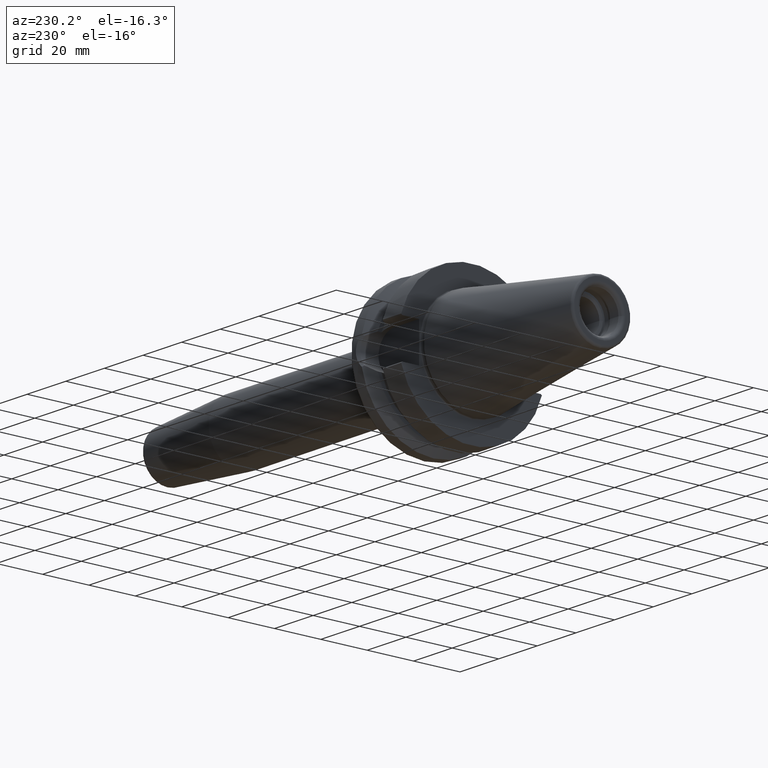
[diagram: clean part render]
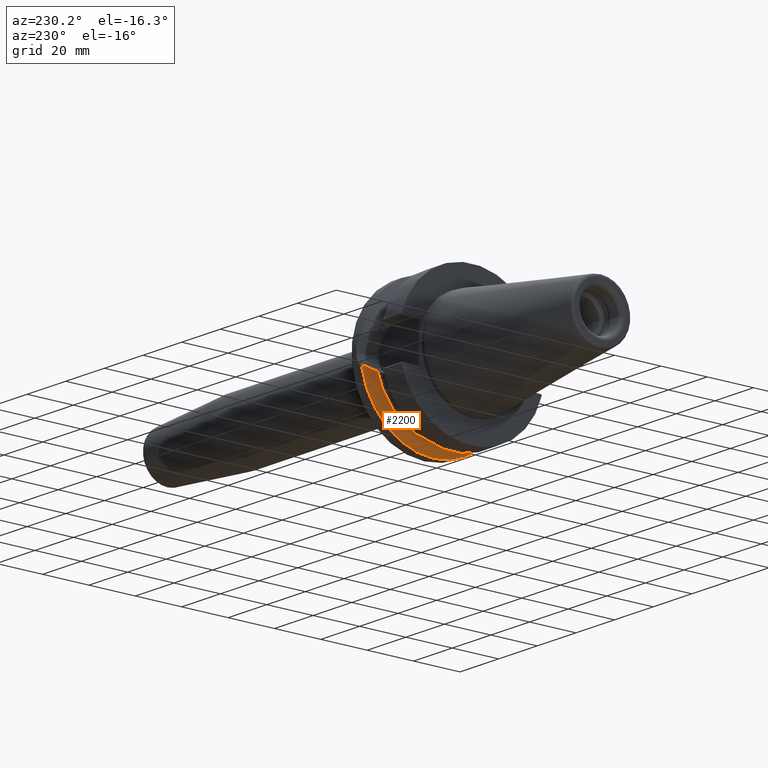
[diagram: same view with one face highlighted and labeled with its STEP entity id]
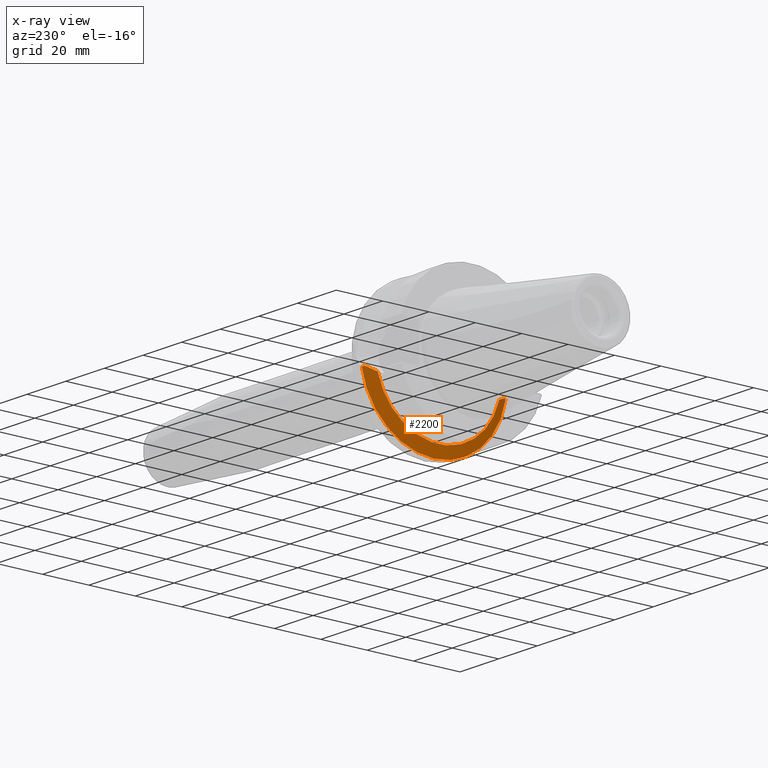
[diagram: x-ray of the same camera — body ghosted, the highlighted face saturated]
A machine part, auxiliary view. The second image highlights one B-rep face of the part: STEP entity #2200.
The next image is the same camera in x-ray: the body ghosted, the highlighted face saturated — about 5% of this face is hidden behind the body in this view.
In plain terms, the highlighted conical surface has half-angle 60 deg.
Its self-contained STEP definition (entity closure, byte-faithful):
#592=CARTESIAN_POINT('',(2.117998131741E1,-3.029289531603E1,-5.098022438631E0));
#593=CARTESIAN_POINT('',(2.125098636771E1,-3.040276279849E1,-5.186240369507E0));
#594=CARTESIAN_POINT('',(2.139712436014E1,-3.062857704635E1,-5.366851324556E0));
#595=CARTESIAN_POINT('',(2.155161117429E1,-3.086661835544E1,-5.555829756867E0));
#596=CARTESIAN_POINT('',(2.16309635E1,-3.098871085802E1,-5.652415356123E0));
#598=CARTESIAN_POINT('',(2.16309635E1,0.E0,0.E0));
#599=DIRECTION('',(1.E0,0.E0,0.E0));
#600=DIRECTION('',(0.E0,-9.837685986673E-1,-1.794417573372E-1));
#601=AXIS2_PLACEMENT_3D('',#598,#599,#600);
#603=CARTESIAN_POINT('',(2.16309635E1,0.E0,0.E0));
#604=DIRECTION('',(1.E0,0.E0,0.E0));
#605=DIRECTION('',(0.E0,0.E0,-1.E0));
#606=AXIS2_PLACEMENT_3D('',#603,#604,#605);
#608=CARTESIAN_POINT('',(2.117998131741E1,3.029289531603E1,-5.098022438631E0));
#609=CARTESIAN_POINT('',(2.125348414074E1,3.040662765083E1,-5.189343646915E0));
#610=CARTESIAN_POINT('',(2.140215551002E1,3.063633978232E1,-5.373035076681E0));
#611=CARTESIAN_POINT('',(2.155414334301E1,3.087051438261E1,-5.558911847172E0));
#612=CARTESIAN_POINT('',(2.16309635E1,3.098871085802E1,-5.652415356123E0));
#631=CARTESIAN_POINT('',(2.117998131741E1,-3.029289531603E1,-5.098022438631E0));
#632=CARTESIAN_POINT('',(2.099357945593E1,-2.992716271349E1,-5.325812749184E0));
#633=CARTESIAN_POINT('',(2.059086834754E1,-2.913753076905E1,-5.766648249127E0));
#634=CARTESIAN_POINT('',(1.990303269829E1,-2.779127514901E1,-6.368641630073E0));
#635=CARTESIAN_POINT('',(1.937816045766E1,-2.676643204292E1,-6.730473604449E0));
#636=CARTESIAN_POINT('',(1.91E1,-2.622423715090E1,-6.897825744392E0));
#705=CARTESIAN_POINT('',(1.91E1,0.E0,0.E0));
#706=DIRECTION('',(1.E0,0.E0,0.E0));
#707=DIRECTION('',(0.E0,-9.671043850984E-1,-2.543798504666E-1));
#708=AXIS2_PLACEMENT_3D('',#705,#706,#707);
#751=CARTESIAN_POINT('',(1.91E1,2.622423715090E1,-6.897825744392E0));
#752=CARTESIAN_POINT('',(1.931270939664E1,2.663885376935E1,-6.769851506023E0));
#753=CARTESIAN_POINT('',(1.971780615998E1,2.742950321941E1,-6.499305607373E0));
#754=CARTESIAN_POINT('',(2.026354286535E1,2.849673598439E1,-6.060161450422E0));
#755=CARTESIAN_POINT('',(2.075152484592E1,2.945251334633E1,-5.593981638638E0));
#756=CARTESIAN_POINT('',(2.104302502496E1,3.002417814296E1,-5.265388344428E0));
#757=CARTESIAN_POINT('',(2.117998131741E1,3.029289531603E1,-5.098022438631E0));
#795=CARTESIAN_POINT('',(2.16309635E1,3.098871085802E1,-5.652415356123E0));
#1083=CARTESIAN_POINT('',(1.91E1,2.622423715090E1,-6.897825744392E0));
#1085=VERTEX_POINT('',#1083);
#1106=CARTESIAN_POINT('',(2.16309635E1,0.E0,-3.15E1));
#1107=VERTEX_POINT('',#1106);
#1175=VERTEX_POINT('',#795);
#1180=VERTEX_POINT('',#608);
#1220=VERTEX_POINT('',#592);
#1221=VERTEX_POINT('',#596);
#1222=VERTEX_POINT('',#636);
#2180=CARTESIAN_POINT('',(2.036548175E1,0.E0,0.E0));
#2181=DIRECTION('',(1.E0,0.E0,0.E0));
#2182=DIRECTION('',(0.E0,0.E0,1.E0));
#2183=AXIS2_PLACEMENT_3D('',#2180,#2181,#2182);
#2184=CONICAL_SURFACE('',#2183,2.930812131295E1,6.E1);
#2186=ORIENTED_EDGE('',*,*,#2185,.F.);
#2188=ORIENTED_EDGE('',*,*,#2187,.F.);
#2190=ORIENTED_EDGE('',*,*,#2189,.T.);
#2191=ORIENTED_EDGE('',*,*,#2145,.T.);
#2193=ORIENTED_EDGE('',*,*,#2192,.T.);
#2195=ORIENTED_EDGE('',*,*,#2194,.F.);
#2197=ORIENTED_EDGE('',*,*,#2196,.F.);
#2198=EDGE_LOOP('',(#2186,#2188,#2190,#2191,#2193,#2195,#2197));
#2199=FACE_OUTER_BOUND('',#2198,.F.);
#2200=ADVANCED_FACE('',(#2199),#2184,.T.);
#597=B_SPLINE_CURVE_WITH_KNOTS('',3,(#592,#593,#594,#595,#596),.UNSPECIFIED.,
.F.,.F.,(4,1,4),(0.E0,5.E-1,1.E0),.UNSPECIFIED.);
#602=CIRCLE('',#601,3.15E1);
#607=CIRCLE('',#606,3.15E1);
#613=B_SPLINE_CURVE_WITH_KNOTS('',3,(#608,#609,#610,#611,#612),.UNSPECIFIED.,
.F.,.F.,(4,1,4),(0.E0,5.E-1,1.E0),.UNSPECIFIED.);
#637=B_SPLINE_CURVE_WITH_KNOTS('',3,(#631,#632,#633,#634,#635,#636),
.UNSPECIFIED.,.F.,.F.,(4,1,1,4),(0.E0,3.333333333333E-1,6.666666666667E-1,1.E0),
.UNSPECIFIED.);
#709=CIRCLE('',#708,2.711624262590E1);
#758=B_SPLINE_CURVE_WITH_KNOTS('',3,(#751,#752,#753,#754,#755,#756,#757),
.UNSPECIFIED.,.F.,.F.,(4,1,1,1,4),(0.E0,2.5E-1,5.E-1,7.5E-1,1.E0),
.UNSPECIFIED.);
#2145=EDGE_CURVE('',#1221,#1107,#602,.T.);
#2185=EDGE_CURVE('',#1222,#1085,#709,.T.);
#2187=EDGE_CURVE('',#1220,#1222,#637,.T.);
#2189=EDGE_CURVE('',#1220,#1221,#597,.T.);
#2192=EDGE_CURVE('',#1107,#1175,#607,.T.);
#2194=EDGE_CURVE('',#1180,#1175,#613,.T.);
#2196=EDGE_CURVE('',#1085,#1180,#758,.T.);